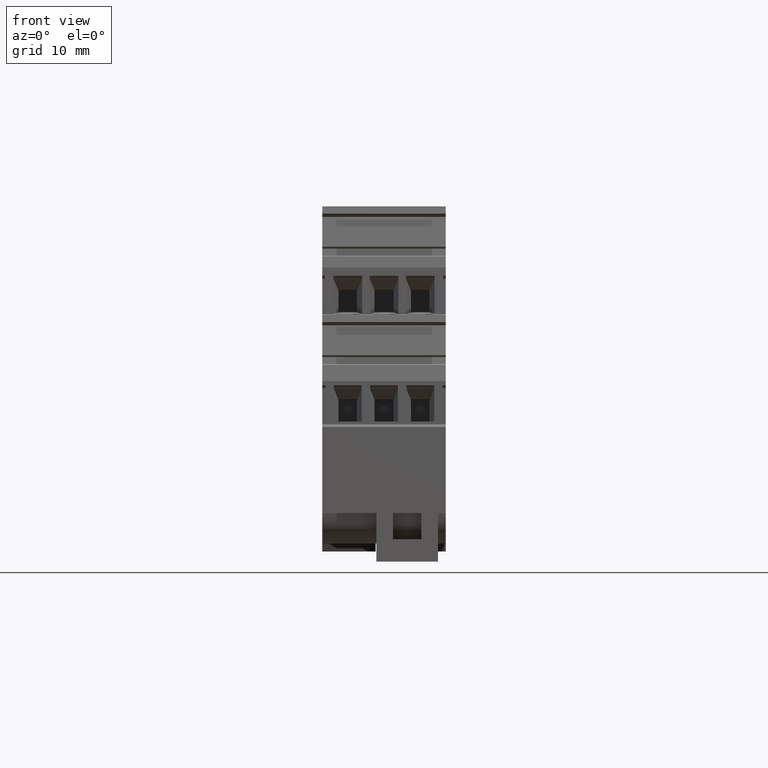
[diagram: clean part render]
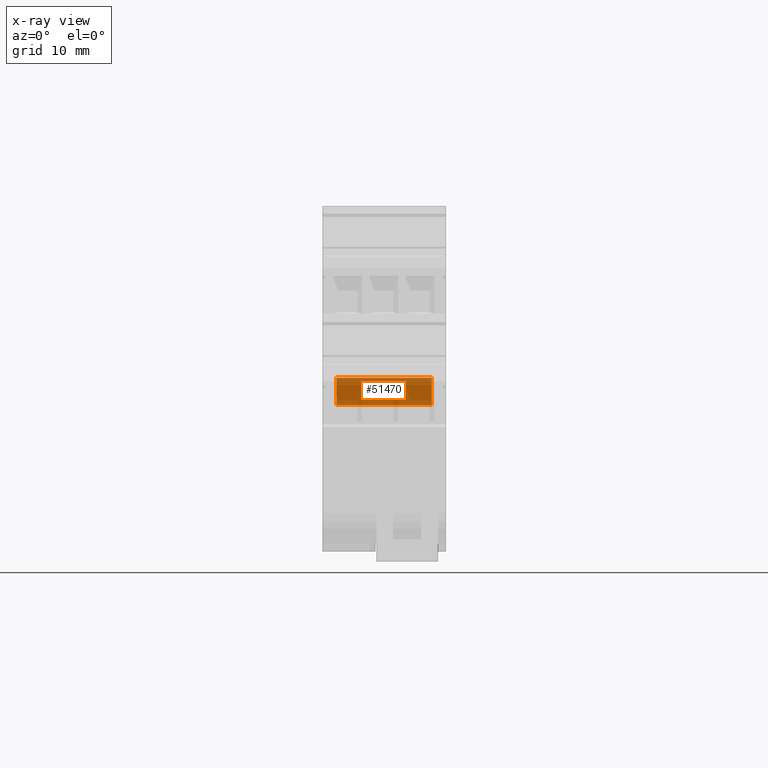
[diagram: x-ray — body ghosted, one internal face saturated and labeled with its STEP entity id]
A machine part, front view, then the same camera in x-ray: the body is ghosted and one INTERNAL B-rep face — a face not visible from any outside direction — is saturated and labeled: STEP entity #51470.
In plain terms, the highlighted planar face has unit normal (-0, -1, -0).
Its self-contained STEP definition (entity closure, byte-faithful):
#31100=CARTESIAN_POINT('',(48.3413513671893,32.556274052444,-53.));
#31110=VERTEX_POINT('',#31100);
#31140=CARTESIAN_POINT('',(48.3413513671893,32.556274052444,
-3.74999999990759));
#31150=DIRECTION('',(-1.22464679914735E-16,0.,-1.));
#31160=VECTOR('',#31150,1.);
#31170=LINE('',#31140,#31160);
#31180=CARTESIAN_POINT('',(48.3413513671893,32.556274052444,-39.3));
#31190=VERTEX_POINT('',#31180);
#31200=EDGE_CURVE('',#31190,#31110,#31170,.T.);
#32270=CARTESIAN_POINT('',(48.3413513671893,-19.6999999999998,-39.3));
#32280=DIRECTION('',(2.34801010197241E-52,-1.,-1.31140241098497E-68));
#32290=VECTOR('',#32280,1.);
#32300=LINE('',#32270,#32290);
#32310=CARTESIAN_POINT('',(48.3413513671893,36.456274052444,-39.3));
#32320=VERTEX_POINT('',#32310);
#32330=EDGE_CURVE('',#32320,#31190,#32300,.T.);
#32700=CARTESIAN_POINT('',(48.3413513671893,36.456274052444,-53.));
#32710=VERTEX_POINT('',#32700);
#32740=CARTESIAN_POINT('',(48.3413513671894,-19.6999999999998,-53.));
#32750=DIRECTION('',(2.34801010197241E-52,-1.,1.31140241098497E-68));
#32760=VECTOR('',#32750,1.);
#32770=LINE('',#32740,#32760);
#32780=EDGE_CURVE('',#32710,#31110,#32770,.T.);
#36980=CARTESIAN_POINT('',(48.3413513671893,36.456274052444,
-3.74999999990759));
#36990=DIRECTION('',(-1.22464679914735E-16,0.,-1.));
#37000=VECTOR('',#36990,1.);
#37010=LINE('',#36980,#37000);
#37020=EDGE_CURVE('',#32320,#32710,#37010,.T.);
#51360=CARTESIAN_POINT('',(48.3413513671893,32.556274052444,
-39.5071067811865));
#51370=DIRECTION('',(-1.,-2.34801010197241E-52,1.22464679914735E-16));
#51380=DIRECTION('',(-1.22464679914735E-16,0.,-1.));
#51390=AXIS2_PLACEMENT_3D('',#51360,#51370,#51380);
#51400=PLANE('',#51390);
#51410=ORIENTED_EDGE('',*,*,#32780,.T.);
#51420=ORIENTED_EDGE('',*,*,#37020,.T.);
#51430=ORIENTED_EDGE('',*,*,#32330,.F.);
#51440=ORIENTED_EDGE('',*,*,#31200,.F.);
#51450=EDGE_LOOP('',(#51440,#51430,#51420,#51410));
#51460=FACE_OUTER_BOUND('',#51450,.T.);
#51470=ADVANCED_FACE('',(#51460),#51400,.T.);